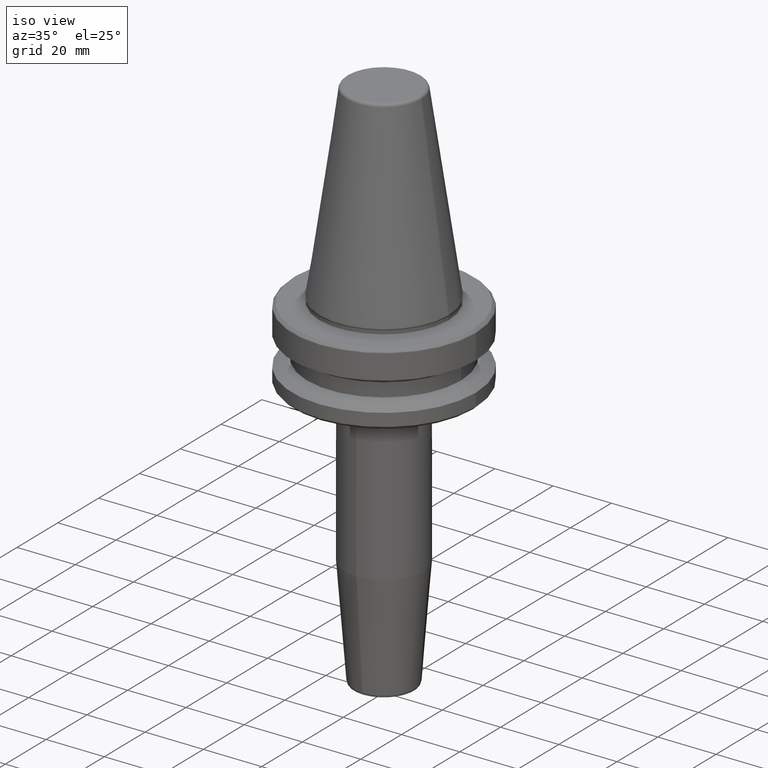
[diagram: clean part render]
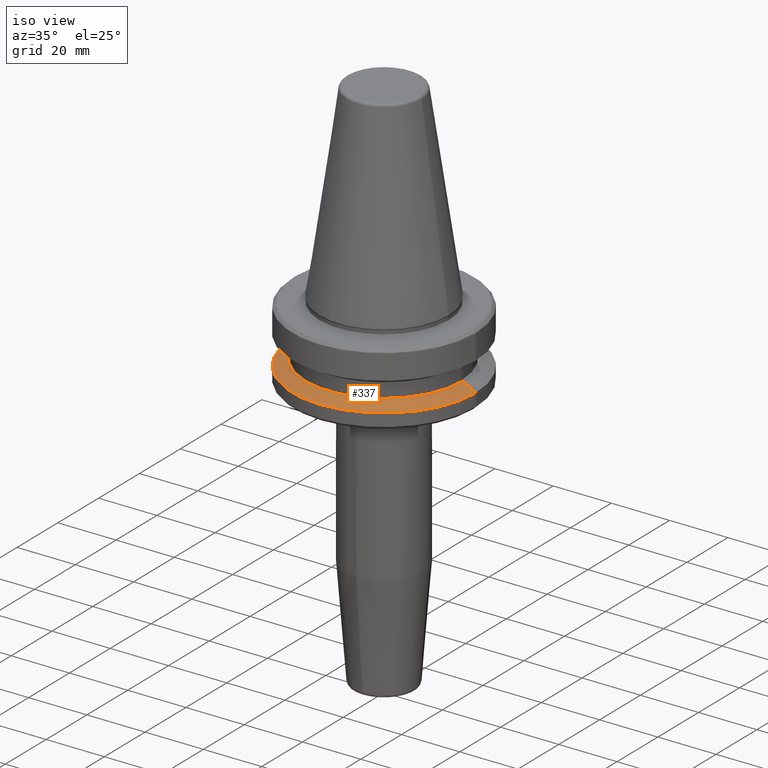
[diagram: same view with one face highlighted and labeled with its STEP entity id]
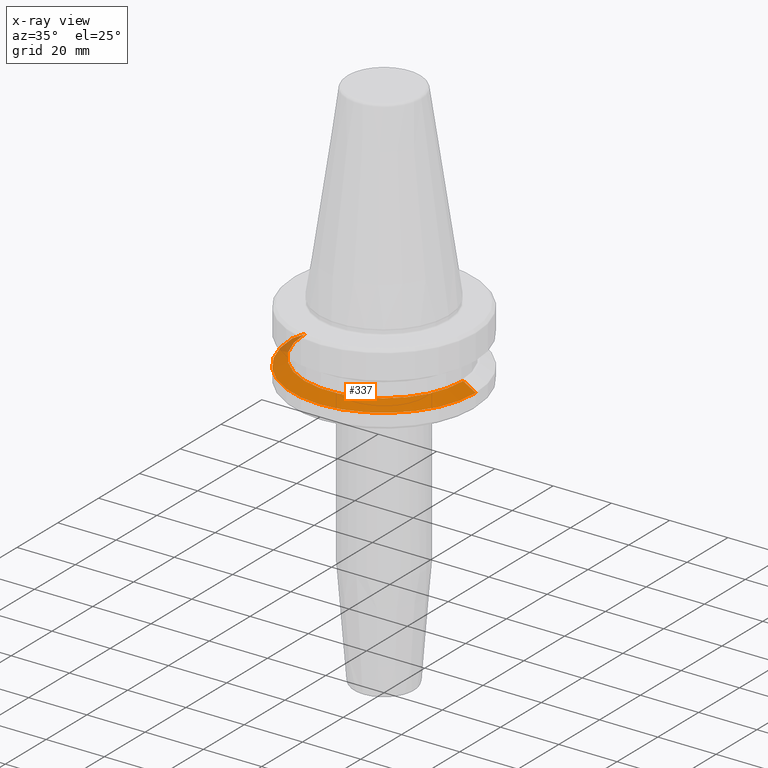
[diagram: x-ray of the same camera — body ghosted, the highlighted face saturated]
A machine part, iso view. The second image highlights one B-rep face of the part: STEP entity #337.
The next image is the same camera in x-ray: the body ghosted, the highlighted face saturated — about 4% of this face is hidden behind the body in this view.
In plain terms, the highlighted conical surface has half-angle 60 deg.
Its self-contained STEP definition (entity closure, byte-faithful):
#54 = CIRCLE ( 'NONE', #1169, 27.16962701892216700 ) ;
#77 = EDGE_CURVE ( 'NONE', #565, #88, #913, .T. ) ;
#88 = VERTEX_POINT ( 'NONE', #226 ) ;
#92 = VECTOR ( 'NONE', #186, 1000.000000000000000 ) ;
#186 = DIRECTION ( 'NONE',  ( 0.8660254037844403700, 1.060575238724909000E-016, -0.4999999999999970000 ) ) ;
#226 = CARTESIAN_POINT ( 'NONE',  ( -31.50000000000000000, 3.857637417314162700E-015, -21.60014200631675500 ) ) ;
#243 = DIRECTION ( 'NONE',  ( 1.000000000000000000, 0.0000000000000000000, 0.0000000000000000000 ) ) ;
#304 = DIRECTION ( 'NONE',  ( 0.0000000000000000000, 0.0000000000000000000, -1.000000000000000000 ) ) ;
#337 = ADVANCED_FACE ( 'NONE', ( #678 ), #377, .T. ) ;
#351 = AXIS2_PLACEMENT_3D ( 'NONE', #1233, #752, #1134 ) ;
#358 = DIRECTION ( 'NONE',  ( -1.000000000000000000, 0.0000000000000000000, 0.0000000000000000000 ) ) ;
#377 = CONICAL_SURFACE ( 'NONE', #718, 27.16962701892216700, 1.047197551196601200 ) ;
#430 = EDGE_CURVE ( 'NONE', #565, #642, #54, .T. ) ;
#535 = CARTESIAN_POINT ( 'NONE',  ( -27.16962701892216700, 0.0000000000000000000, -19.10000000000000500 ) ) ;
#565 = VERTEX_POINT ( 'NONE', #891 ) ;
#584 = CARTESIAN_POINT ( 'NONE',  ( 0.0000000000000000000, 0.0000000000000000000, -19.10000000000000500 ) ) ;
#601 = EDGE_CURVE ( 'NONE', #642, #1054, #622, .T. ) ;
#622 = LINE ( 'NONE', #1186, #92 ) ;
#637 = VECTOR ( 'NONE', #723, 1000.000000000000000 ) ;
#642 = VERTEX_POINT ( 'NONE', #811 ) ;
#678 = FACE_OUTER_BOUND ( 'NONE', #719, .T. ) ;
#718 = AXIS2_PLACEMENT_3D ( 'NONE', #851, #304, #358 ) ;
#719 = EDGE_LOOP ( 'NONE', ( #724, #790, #748, #1105 ) ) ;
#723 = DIRECTION ( 'NONE',  ( -0.8660254037844403700, 0.0000000000000000000, -0.4999999999999970000 ) ) ;
#724 = ORIENTED_EDGE ( 'NONE', *, *, #601, .F. ) ;
#748 = ORIENTED_EDGE ( 'NONE', *, *, #77, .T. ) ;
#752 = DIRECTION ( 'NONE',  ( -0.0000000000000000000, -0.0000000000000000000, 1.000000000000000000 ) ) ;
#790 = ORIENTED_EDGE ( 'NONE', *, *, #430, .F. ) ;
#811 = CARTESIAN_POINT ( 'NONE',  ( 27.16962701892216700, 3.592478546794605500E-015, -19.10000000000000500 ) ) ;
#832 = CIRCLE ( 'NONE', #351, 31.50000000000000000 ) ;
#851 = CARTESIAN_POINT ( 'NONE',  ( 0.0000000000000000000, 0.0000000000000000000, -19.10000000000000500 ) ) ;
#865 = CARTESIAN_POINT ( 'NONE',  ( 31.50000000000000000, 0.0000000000000000000, -21.60014200631675500 ) ) ;
#891 = CARTESIAN_POINT ( 'NONE',  ( -27.16962701892216700, 0.0000000000000000000, -19.10000000000000500 ) ) ;
#913 = LINE ( 'NONE', #535, #637 ) ;
#941 = DIRECTION ( 'NONE',  ( -0.0000000000000000000, -0.0000000000000000000, 1.000000000000000000 ) ) ;
#1054 = VERTEX_POINT ( 'NONE', #865 ) ;
#1105 = ORIENTED_EDGE ( 'NONE', *, *, #1248, .T. ) ;
#1134 = DIRECTION ( 'NONE',  ( 1.000000000000000000, 0.0000000000000000000, 0.0000000000000000000 ) ) ;
#1169 = AXIS2_PLACEMENT_3D ( 'NONE', #584, #941, #243 ) ;
#1186 = CARTESIAN_POINT ( 'NONE',  ( 27.16962701892216700, 3.327319676275047600E-015, -19.10000000000000500 ) ) ;
#1233 = CARTESIAN_POINT ( 'NONE',  ( 0.0000000000000000000, 0.0000000000000000000, -21.60014200631675500 ) ) ;
#1248 = EDGE_CURVE ( 'NONE', #88, #1054, #832, .T. ) ;